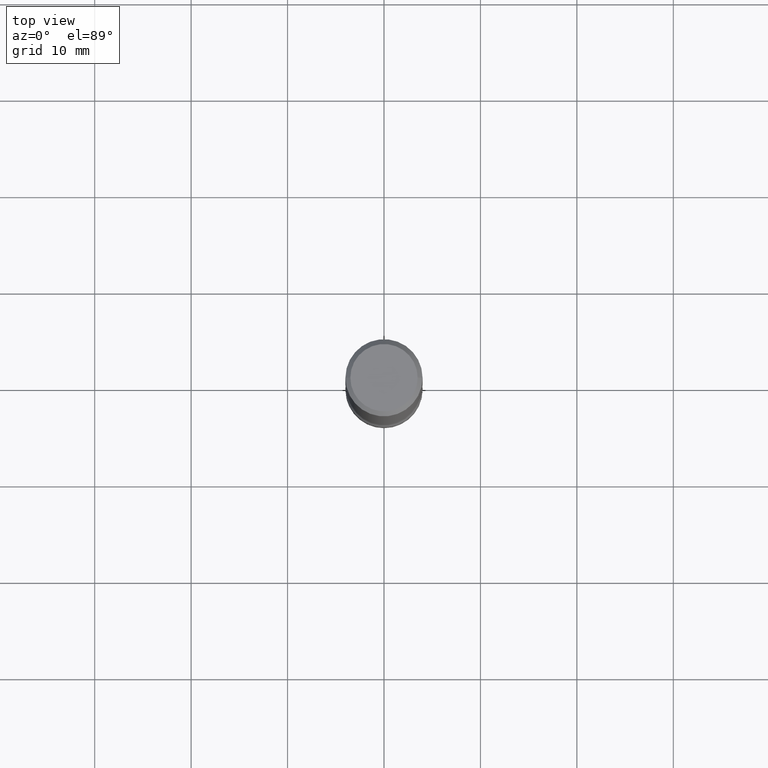
[diagram: clean part render]
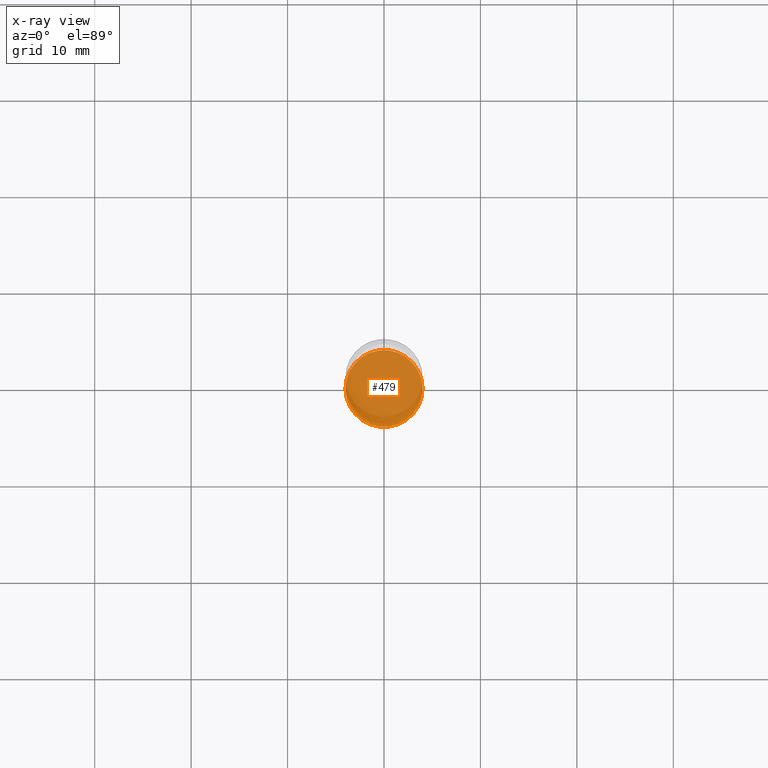
[diagram: x-ray — body ghosted, one internal face saturated and labeled with its STEP entity id]
A machine part, top view, then the same camera in x-ray: the body is ghosted and one INTERNAL B-rep face — a face not visible from any outside direction — is saturated and labeled: STEP entity #479.
In plain terms, the highlighted planar face has unit normal (0, -0, -1).
Its self-contained STEP definition (entity closure, byte-faithful):
#9 = DIRECTION ( 'NONE',  ( 2.445468806185136597E-29, -3.491481338843145583E-15, -1.000000000000000000 ) ) ;
#23 = CIRCLE ( 'NONE', #92, 0.1569999999999995011 ) ;
#37 = DIRECTION ( 'NONE',  ( -1.000000000000000000, 6.982962677686269077E-15, 0.000000000000000000 ) ) ;
#50 = ORIENTED_EDGE ( 'NONE', *, *, #463, .T. ) ;
#61 = AXIS2_PLACEMENT_3D ( 'NONE', #175, #9, #37 ) ;
#92 = AXIS2_PLACEMENT_3D ( 'NONE', #389, #343, #342 ) ;
#116 = VERTEX_POINT ( 'NONE', #258 ) ;
#124 = DIRECTION ( 'NONE',  ( 2.438088387897960049E-29, -3.491481338843145188E-15, -1.000000000000000000 ) ) ;
#142 = ORIENTED_EDGE ( 'NONE', *, *, #194, .T. ) ;
#175 = CARTESIAN_POINT ( 'NONE',  ( 6.258199221908381703E-29, -8.935049894233492186E-15, -2.559099999999999486 ) ) ;
#194 = EDGE_CURVE ( 'NONE', #395, #116, #547, .T. ) ;
#241 = AXIS2_PLACEMENT_3D ( 'NONE', #517, #124, #476 ) ;
#258 = CARTESIAN_POINT ( 'NONE',  ( 0.1569999999999995011, -1.003201017472393128E-14, -2.559099999999999486 ) ) ;
#277 = CARTESIAN_POINT ( 'NONE',  ( -0.1569999999999995011, -7.817570101093448506E-15, -2.559099999999999486 ) ) ;
#296 = PLANE ( 'NONE',  #241 ) ;
#342 = DIRECTION ( 'NONE',  ( -1.000000000000000000, 6.982962677686269077E-15, 0.000000000000000000 ) ) ;
#343 = DIRECTION ( 'NONE',  ( 2.445468806185136597E-29, -3.491481338843145583E-15, -1.000000000000000000 ) ) ;
#389 = CARTESIAN_POINT ( 'NONE',  ( 6.258199221908381703E-29, -8.935049894233492186E-15, -2.559099999999999486 ) ) ;
#395 = VERTEX_POINT ( 'NONE', #277 ) ;
#463 = EDGE_CURVE ( 'NONE', #116, #395, #23, .T. ) ;
#476 = DIRECTION ( 'NONE',  ( -1.000000000000000000, 6.982962677686265922E-15, -4.876176775795935793E-29 ) ) ;
#479 = ADVANCED_FACE ( 'NONE', ( #565 ), #296, .T. ) ;
#517 = CARTESIAN_POINT ( 'NONE',  ( 1.096325140396803046E-15, 0.1569999999999905638, -2.559099999999999930 ) ) ;
#534 = EDGE_LOOP ( 'NONE', ( #50, #142 ) ) ;
#547 = CIRCLE ( 'NONE', #61, 0.1569999999999995011 ) ;
#565 = FACE_OUTER_BOUND ( 'NONE', #534, .T. ) ;